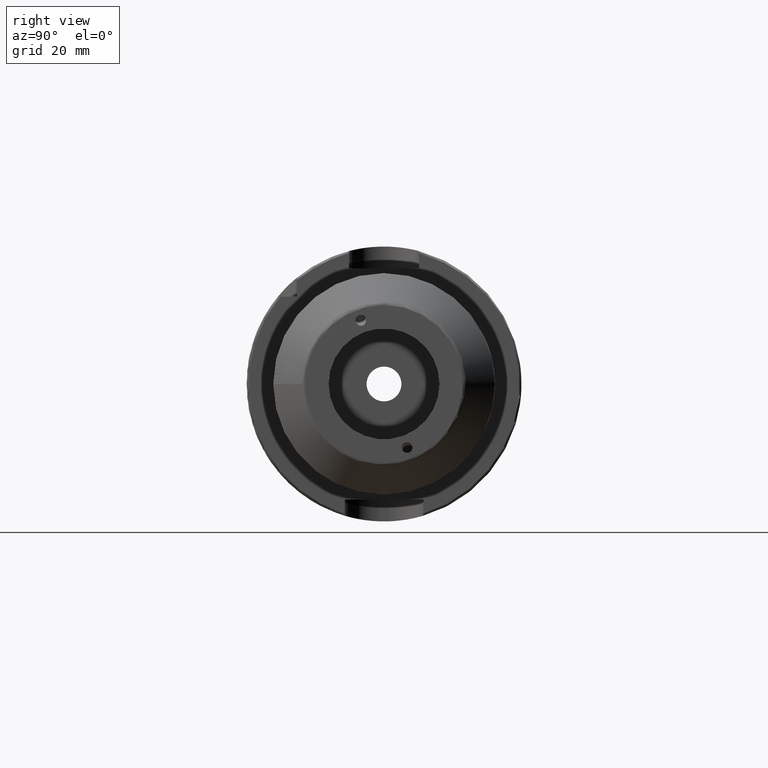
[diagram: clean part render]
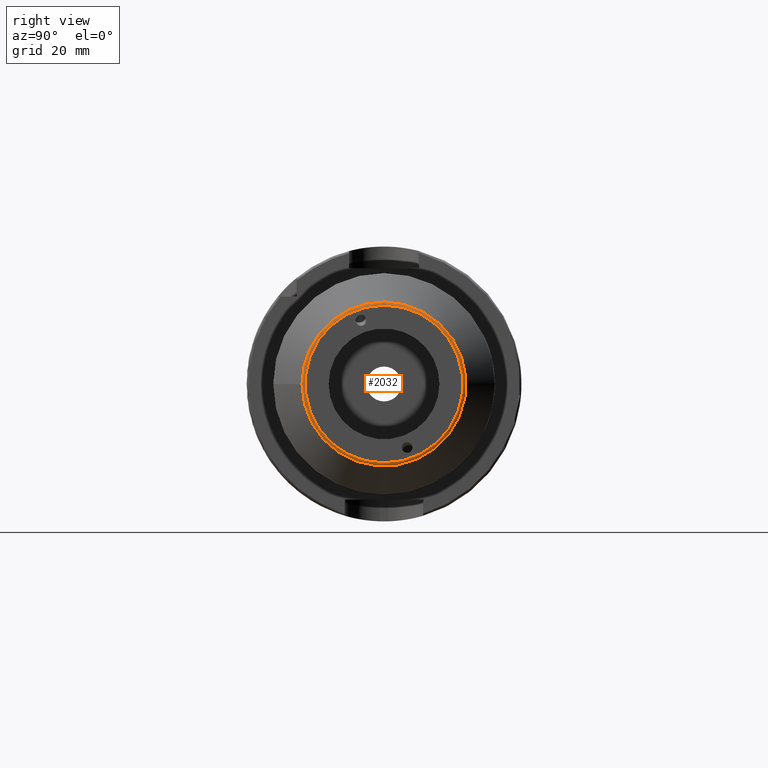
[diagram: same view with one face highlighted and labeled with its STEP entity id]
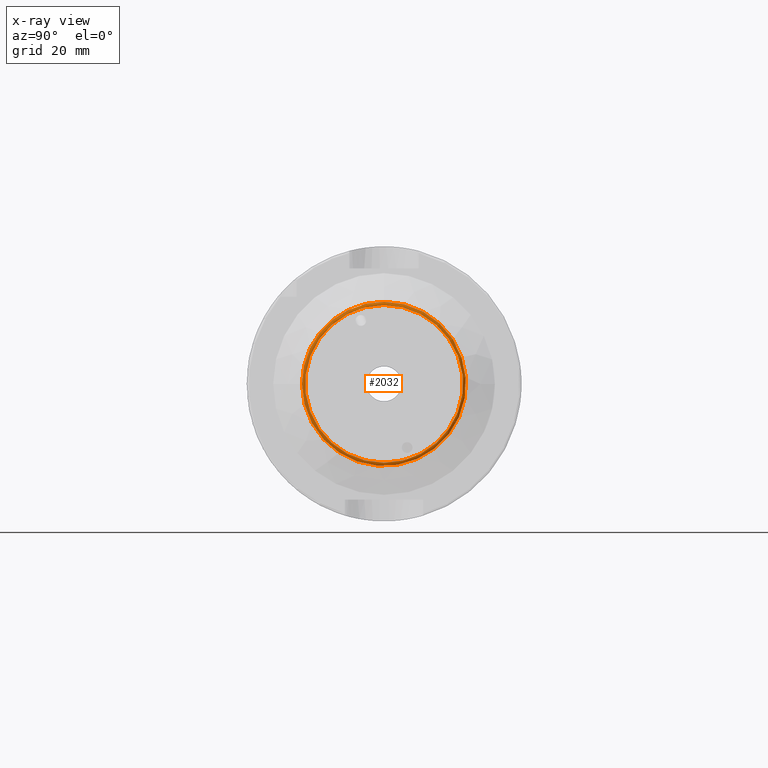
[diagram: x-ray of the same camera — body ghosted, the highlighted face saturated]
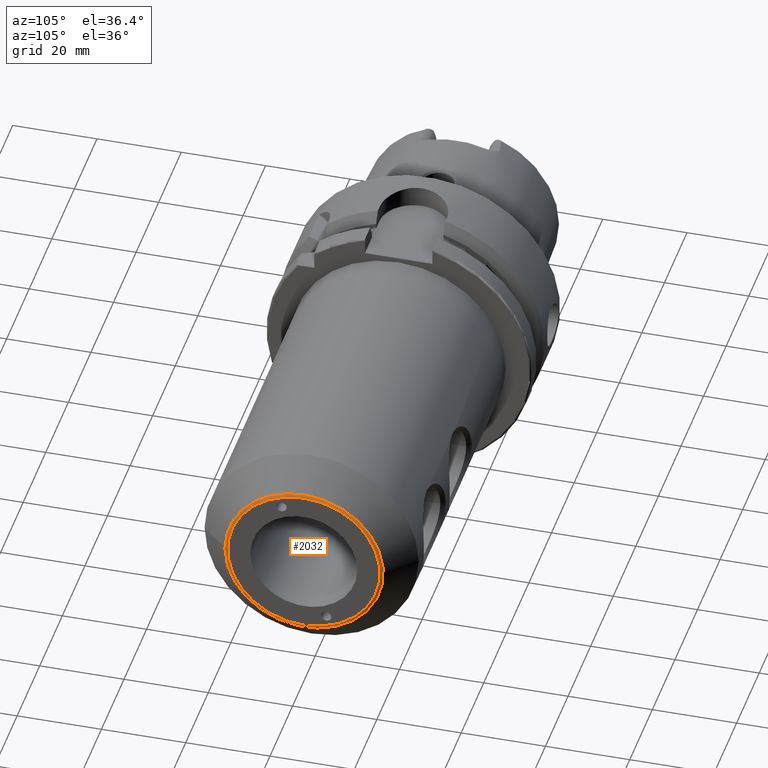
[diagram: same view with one face highlighted and labeled with its STEP entity id]
A machine part, right view. The second image highlights one B-rep face of the part: STEP entity #2032.
The next image is the same camera in x-ray: the body ghosted, the highlighted face saturated — about 0% of this face is hidden behind the body in this view.
A second angle (auxiliary view) of the same face is appended — the face is thin or edge-on in the first view.
In plain terms, the highlighted toroidal blend (fillet) surface has major radius 18.0858 mm and minor (blend) radius 1 mm.
Its self-contained STEP definition (entity closure, byte-faithful):
#71=TOROIDAL_SURFACE('',#2182,18.0857864376269,1.);
#237=FACE_OUTER_BOUND('',#360,.T.);
#360=EDGE_LOOP('',(#1404,#1405,#1406,#1407,#1408));
#716=CIRCLE('',#2183,18.0857864376269);
#717=CIRCLE('',#2184,1.);
#718=CIRCLE('',#2185,18.7928932188135);
#719=CIRCLE('',#2186,18.7928932188135);
#848=VERTEX_POINT('',#3523);
#849=VERTEX_POINT('',#3525);
#850=VERTEX_POINT('',#3527);
#1066=EDGE_CURVE('',#848,#848,#716,.T.);
#1067=EDGE_CURVE('',#848,#849,#717,.T.);
#1068=EDGE_CURVE('',#849,#850,#718,.T.);
#1069=EDGE_CURVE('',#850,#849,#719,.T.);
#1404=ORIENTED_EDGE('',*,*,#1066,.T.);
#1405=ORIENTED_EDGE('',*,*,#1067,.T.);
#1406=ORIENTED_EDGE('',*,*,#1068,.T.);
#1407=ORIENTED_EDGE('',*,*,#1069,.T.);
#1408=ORIENTED_EDGE('',*,*,#1067,.F.);
#2032=ADVANCED_FACE('',(#237),#71,.T.);
#2182=AXIS2_PLACEMENT_3D('',#3522,#2457,#2458);
#2183=AXIS2_PLACEMENT_3D('',#3524,#2459,#2460);
#2184=AXIS2_PLACEMENT_3D('',#3526,#2461,#2462);
#2185=AXIS2_PLACEMENT_3D('',#3528,#2463,#2464);
#2186=AXIS2_PLACEMENT_3D('',#3529,#2465,#2466);
#2457=DIRECTION('center_axis',(1.,0.,0.));
#2458=DIRECTION('ref_axis',(0.,0.,-1.));
#2459=DIRECTION('center_axis',(-1.,0.,0.));
#2460=DIRECTION('ref_axis',(0.,-1.,1.83697019872103E-16));
#2461=DIRECTION('center_axis',(0.,-1.,-1.22464679914735E-16));
#2462=DIRECTION('ref_axis',(0.,-1.22464679914735E-16,1.));
#2463=DIRECTION('center_axis',(1.,0.,0.));
#2464=DIRECTION('ref_axis',(0.,-1.,3.06161699786838E-17));
#2465=DIRECTION('center_axis',(1.,0.,0.));
#2466=DIRECTION('ref_axis',(0.,-1.,3.06161699786838E-17));
#3522=CARTESIAN_POINT('Origin',(109.,0.,0.));
#3523=CARTESIAN_POINT('',(110.,-2.21487004709024E-15,18.0857864376269));
#3524=CARTESIAN_POINT('Origin',(110.,0.,0.));
#3525=CARTESIAN_POINT('',(109.707106781187,-2.30146565271379E-15,18.7928932188135));
#3526=CARTESIAN_POINT('Origin',(109.,-2.21487004709024E-15,18.0857864376269));
#3527=CARTESIAN_POINT('',(109.707106781187,-18.7928932188135,-2.30146565271379E-15));
#3528=CARTESIAN_POINT('Origin',(109.707106781187,0.,-2.87683206589224E-15));
#3529=CARTESIAN_POINT('Origin',(109.707106781187,0.,-2.87683206589224E-15));